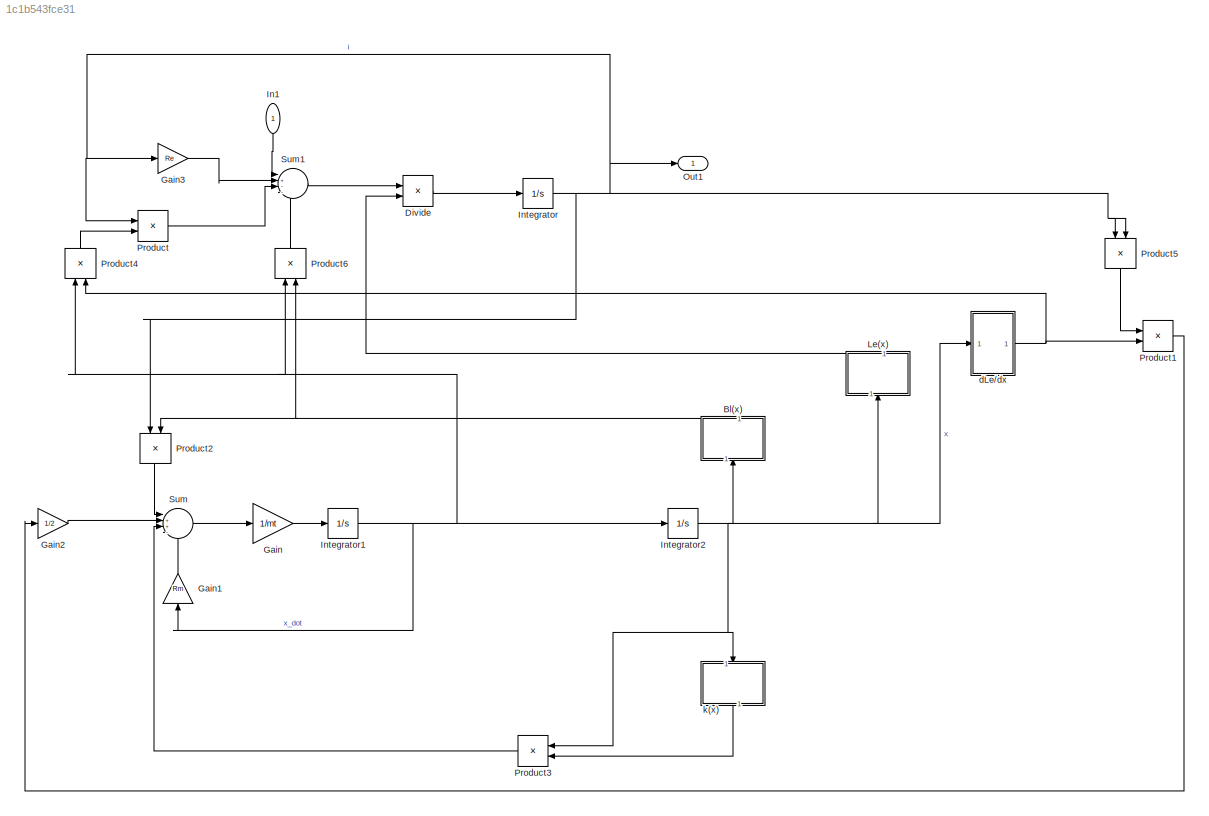
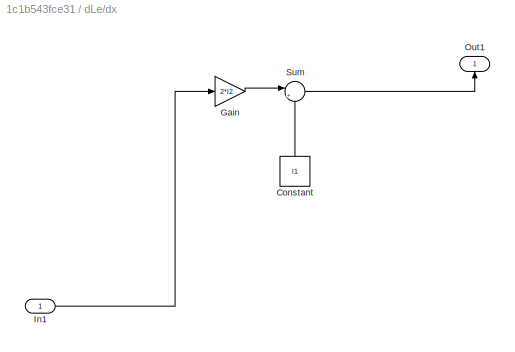
MODEL slx_1c1b543fce31
KIND model
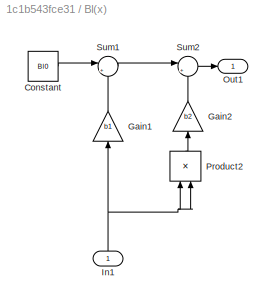
BLOCK [SubSystem] Bl(x)
  Ports = [1, 1]
  RequestExecContextInheritance = off
BLOCK [Constant] Bl(x)/Constant
  Value = Bl0
BLOCK [Gain] Bl(x)/Gain1
  Gain = b1
  OutDataTypeStr = Inherit: Inherit via internal rule
  ParamDataTypeStr = Inherit: Inherit via internal rule
  SaturateOnIntegerOverflow = off
BLOCK [Gain] Bl(x)/Gain2
  Gain = b2
  OutDataTypeStr = Inherit: Inherit via internal rule
  ParamDataTypeStr = Inherit: Inherit via internal rule
  SaturateOnIntegerOverflow = off
BLOCK [Inport] Bl(x)/In1
  IconDisplay = Port number
BLOCK [Outport] Bl(x)/Out1
  IconDisplay = Port number
BLOCK [Product] Bl(x)/Product2
  InputSameDT = off
  OutDataTypeStr = Inherit: Inherit via internal rule
  Ports = [2, 1]
  RndMeth = Floor
  SaturateOnIntegerOverflow = off
BLOCK [Sum] Bl(x)/Sum1
  IconShape = round
  InputSameDT = off
  Inputs = |++
  OutDataTypeStr = Inherit: Inherit via internal rule
  Ports = [2, 1]
  SaturateOnIntegerOverflow = off
BLOCK [Sum] Bl(x)/Sum2
  IconShape = round
  InputSameDT = off
  Inputs = |++
  OutDataTypeStr = Inherit: Inherit via internal rule
  Ports = [2, 1]
  SaturateOnIntegerOverflow = off
BLOCK [Product] Divide
  InputSameDT = off
  Inputs = */
  OutDataTypeStr = Inherit: Inherit via internal rule
  Ports = [2, 1]
  RndMeth = Floor
  SaturateOnIntegerOverflow = off
BLOCK [Gain] Gain
  Gain = 1/mt
  OutDataTypeStr = Inherit: Inherit via internal rule
  ParamDataTypeStr = Inherit: Inherit via internal rule
  SaturateOnIntegerOverflow = off
BLOCK [Gain] Gain1
  Gain = Rm
  OutDataTypeStr = Inherit: Inherit via internal rule
  ParamDataTypeStr = Inherit: Inherit via internal rule
  SaturateOnIntegerOverflow = off
BLOCK [Gain] Gain2
  Gain = 1/2
  OutDataTypeStr = Inherit: Inherit via internal rule
  ParamDataTypeStr = Inherit: Inherit via internal rule
  SaturateOnIntegerOverflow = off
BLOCK [Gain] Gain3
  Gain = Re
  OutDataTypeStr = Inherit: Inherit via internal rule
  ParamDataTypeStr = Inherit: Inherit via internal rule
  SaturateOnIntegerOverflow = off
BLOCK [Inport] In1
  IconDisplay = Port number
BLOCK [Integrator] Integrator
  Ports = [1, 1]
  Priority = 3
BLOCK [Integrator] Integrator1
  Ports = [1, 1]
  Priority = 2
BLOCK [Integrator] Integrator2
  Ports = [1, 1]
  Priority = 1
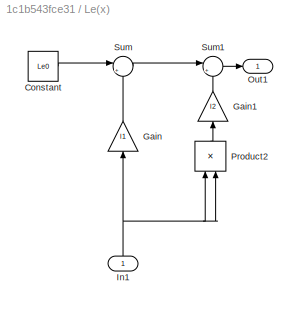
BLOCK [SubSystem] Le(x)
  Ports = [1, 1]
  RequestExecContextInheritance = off
BLOCK [Constant] Le(x)/Constant
  Value = Le0
BLOCK [Gain] Le(x)/Gain
  Gain = l1
  OutDataTypeStr = Inherit: Inherit via internal rule
  ParamDataTypeStr = Inherit: Inherit via internal rule
  SaturateOnIntegerOverflow = off
BLOCK [Gain] Le(x)/Gain1
  Gain = l2
  OutDataTypeStr = Inherit: Inherit via internal rule
  ParamDataTypeStr = Inherit: Inherit via internal rule
  SaturateOnIntegerOverflow = off
BLOCK [Inport] Le(x)/In1
  IconDisplay = Port number
BLOCK [Outport] Le(x)/Out1
  IconDisplay = Port number
BLOCK [Product] Le(x)/Product2
  InputSameDT = off
  OutDataTypeStr = Inherit: Inherit via internal rule
  Ports = [2, 1]
  RndMeth = Floor
  SaturateOnIntegerOverflow = off
BLOCK [Sum] Le(x)/Sum
  IconShape = round
  InputSameDT = off
  Inputs = |++
  OutDataTypeStr = Inherit: Inherit via internal rule
  Ports = [2, 1]
  SaturateOnIntegerOverflow = off
BLOCK [Sum] Le(x)/Sum1
  IconShape = round
  InputSameDT = off
  Inputs = |++
  OutDataTypeStr = Inherit: Inherit via internal rule
  Ports = [2, 1]
  SaturateOnIntegerOverflow = off
BLOCK [Outport] Out1
  IconDisplay = Port number
BLOCK [Product] Product
  InputSameDT = off
  OutDataTypeStr = Inherit: Inherit via internal rule
  Ports = [2, 1]
  RndMeth = Floor
  SaturateOnIntegerOverflow = off
BLOCK [Product] Product1
  InputSameDT = off
  OutDataTypeStr = Inherit: Inherit via internal rule
  Ports = [2, 1]
  RndMeth = Floor
  SaturateOnIntegerOverflow = off
BLOCK [Product] Product2
  InputSameDT = off
  OutDataTypeStr = Inherit: Inherit via internal rule
  Ports = [2, 1]
  RndMeth = Floor
  SaturateOnIntegerOverflow = off
BLOCK [Product] Product3
  InputSameDT = off
  OutDataTypeStr = Inherit: Inherit via internal rule
  Ports = [2, 1]
  RndMeth = Floor
  SaturateOnIntegerOverflow = off
BLOCK [Product] Product4
  InputSameDT = off
  OutDataTypeStr = Inherit: Inherit via internal rule
  Ports = [2, 1]
  RndMeth = Floor
  SaturateOnIntegerOverflow = off
BLOCK [Product] Product5
  InputSameDT = off
  OutDataTypeStr = Inherit: Inherit via internal rule
  Ports = [2, 1]
  RndMeth = Floor
  SaturateOnIntegerOverflow = off
BLOCK [Product] Product6
  InputSameDT = off
  OutDataTypeStr = Inherit: Inherit via internal rule
  Ports = [2, 1]
  RndMeth = Floor
  SaturateOnIntegerOverflow = off
BLOCK [Sum] Sum
  IconShape = round
  InputSameDT = off
  Inputs = |++--
  OutDataTypeStr = Inherit: Inherit via internal rule
  Ports = [4, 1]
  SaturateOnIntegerOverflow = off
BLOCK [Sum] Sum1
  IconShape = round
  InputSameDT = off
  Inputs = |+---
  OutDataTypeStr = Inherit: Inherit via internal rule
  Ports = [4, 1]
  SaturateOnIntegerOverflow = off
BLOCK [SubSystem] dLe//dx
  Ports = [1, 1]
  RequestExecContextInheritance = off
BLOCK [Constant] dLe//dx/Constant
  Value = l1
BLOCK [Gain] dLe//dx/Gain
  Gain = 2*l2
  OutDataTypeStr = Inherit: Inherit via internal rule
  ParamDataTypeStr = Inherit: Inherit via internal rule
  SaturateOnIntegerOverflow = off
BLOCK [Inport] dLe//dx/In1
  IconDisplay = Port number
BLOCK [Outport] dLe//dx/Out1
  IconDisplay = Port number
BLOCK [Sum] dLe//dx/Sum
  IconShape = round
  InputSameDT = off
  Inputs = |++
  OutDataTypeStr = Inherit: Inherit via internal rule
  Ports = [2, 1]
  SaturateOnIntegerOverflow = off
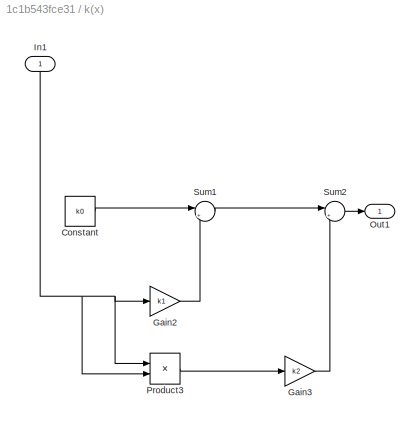
BLOCK [SubSystem] k(x)
  Ports = [1, 1]
  RequestExecContextInheritance = off
BLOCK [Constant] k(x)/Constant
  Value = k0
BLOCK [Gain] k(x)/Gain2
  Gain = k1
  OutDataTypeStr = Inherit: Inherit via internal rule
  ParamDataTypeStr = Inherit: Inherit via internal rule
  SaturateOnIntegerOverflow = off
BLOCK [Gain] k(x)/Gain3
  Gain = k2
  OutDataTypeStr = Inherit: Inherit via internal rule
  ParamDataTypeStr = Inherit: Inherit via internal rule
  SaturateOnIntegerOverflow = off
BLOCK [Inport] k(x)/In1
  IconDisplay = Port number
BLOCK [Outport] k(x)/Out1
  IconDisplay = Port number
BLOCK [Product] k(x)/Product3
  InputSameDT = off
  OutDataTypeStr = Inherit: Inherit via internal rule
  Ports = [2, 1]
  RndMeth = Floor
  SaturateOnIntegerOverflow = off
BLOCK [Sum] k(x)/Sum1
  IconShape = round
  InputSameDT = off
  Inputs = |++
  OutDataTypeStr = Inherit: Inherit via internal rule
  Ports = [2, 1]
  SaturateOnIntegerOverflow = off
BLOCK [Sum] k(x)/Sum2
  IconShape = round
  InputSameDT = off
  Inputs = |++
  OutDataTypeStr = Inherit: Inherit via internal rule
  Ports = [2, 1]
  SaturateOnIntegerOverflow = off
LINE Bl(x)/Constant:1 -> Bl(x)/Sum1:1
LINE Bl(x)/Gain1:1 -> Bl(x)/Sum1:2
LINE Bl(x)/Gain2:1 -> Bl(x)/Sum2:2
NET Bl(x)/In1:1 -> Bl(x)/Gain1:1, Bl(x)/Product2:1, Bl(x)/Product2:2
LINE Bl(x)/Product2:1 -> Bl(x)/Gain2:1
LINE Bl(x)/Sum1:1 -> Bl(x)/Sum2:1
LINE Bl(x)/Sum2:1 -> Bl(x)/Out1:1
NET Bl(x):1 -> Product2:2, Product6:2
LINE Divide:1 -> Integrator:1
LINE Gain1:1 -> Sum:4
LINE Gain2:1 -> Sum:2
LINE Gain3:1 -> Sum1:2
LINE Gain:1 -> Integrator1:1
LINE In1:1 -> Sum1:1
NET Integrator1:1 -> Gain1:1, Integrator2:1, Product4:1, Product6:1
NET Integrator2:1 -> Bl(x):1, Le(x):1, Product3:1, dLe//dx:1, k(x):1
NET Integrator:1 -> Gain3:1, Out1:1, Product2:1, Product5:1, Product5:2, Product:1
LINE Le(x)/Constant:1 -> Le(x)/Sum:1
LINE Le(x)/Gain1:1 -> Le(x)/Sum1:2
LINE Le(x)/Gain:1 -> Le(x)/Sum:2
NET Le(x)/In1:1 -> Le(x)/Gain:1, Le(x)/Product2:1, Le(x)/Product2:2
LINE Le(x)/Product2:1 -> Le(x)/Gain1:1
LINE Le(x)/Sum1:1 -> Le(x)/Out1:1
LINE Le(x)/Sum:1 -> Le(x)/Sum1:1
LINE Le(x):1 -> Divide:2
LINE Product1:1 -> Gain2:1
LINE Product2:1 -> Sum:1
LINE Product3:1 -> Sum:3
LINE Product4:1 -> Product:2
LINE Product5:1 -> Product1:1
LINE Product6:1 -> Sum1:4
LINE Product:1 -> Sum1:3
LINE Sum1:1 -> Divide:1
LINE Sum:1 -> Gain:1
LINE dLe//dx/Constant:1 -> dLe//dx/Sum:2
LINE dLe//dx/Gain:1 -> dLe//dx/Sum:1
LINE dLe//dx/In1:1 -> dLe//dx/Gain:1
LINE dLe//dx/Sum:1 -> dLe//dx/Out1:1
NET dLe//dx:1 -> Product1:2, Product4:2
LINE k(x)/Constant:1 -> k(x)/Sum1:1
LINE k(x)/Gain2:1 -> k(x)/Sum1:2
LINE k(x)/Gain3:1 -> k(x)/Sum2:2
NET k(x)/In1:1 -> k(x)/Gain2:1, k(x)/Product3:1, k(x)/Product3:2
LINE k(x)/Product3:1 -> k(x)/Gain3:1
LINE k(x)/Sum1:1 -> k(x)/Sum2:1
LINE k(x)/Sum2:1 -> k(x)/Out1:1
LINE k(x):1 -> Product3:2
note: NET lines group one-source signal fan-out (src -> all destinations, sorted); 1:1 wires keep LINE
